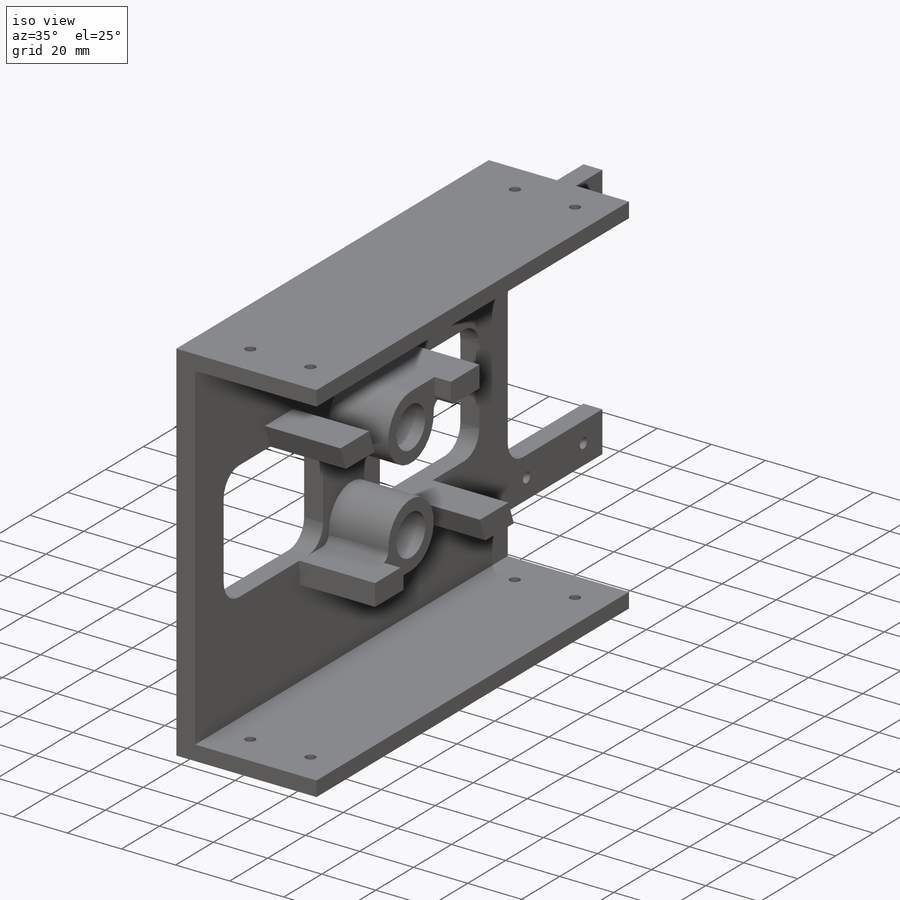
[diagram: iso view]
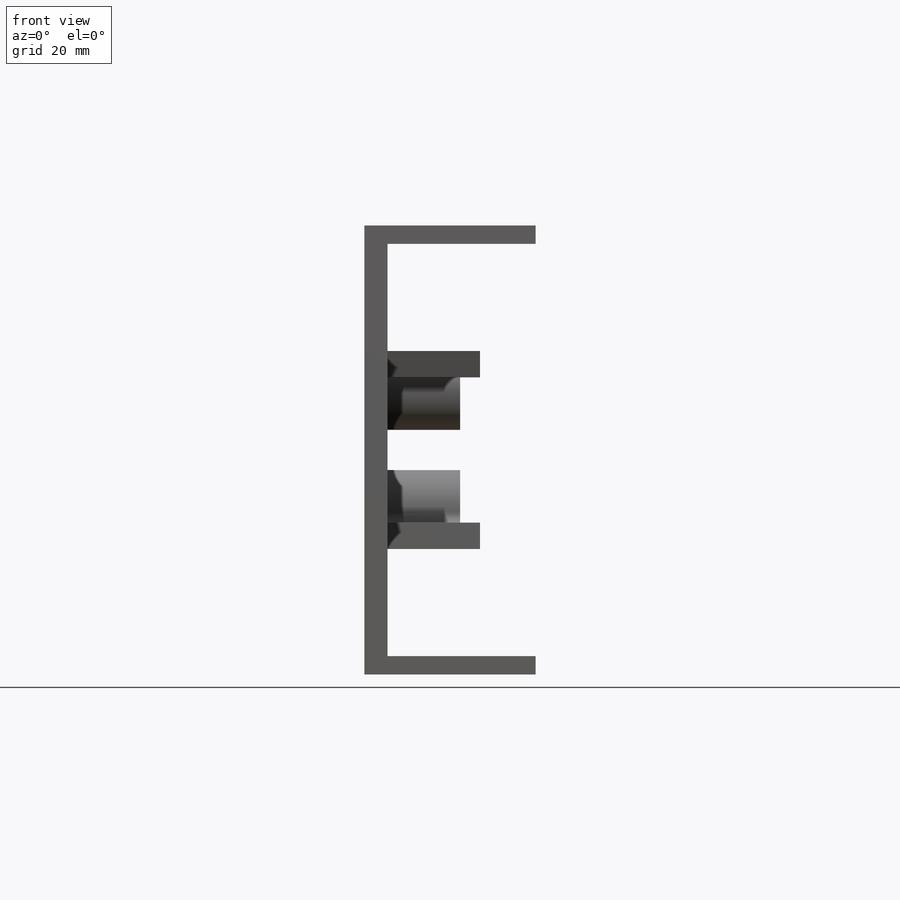
[diagram: front view]
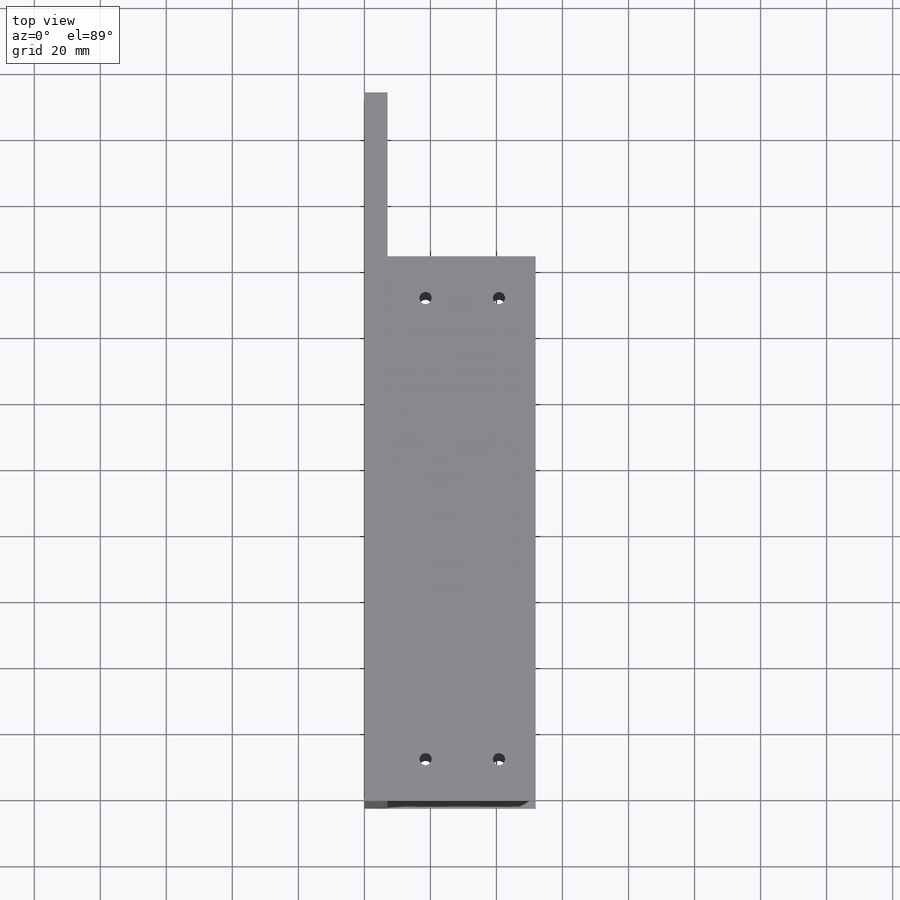
[diagram: top view]
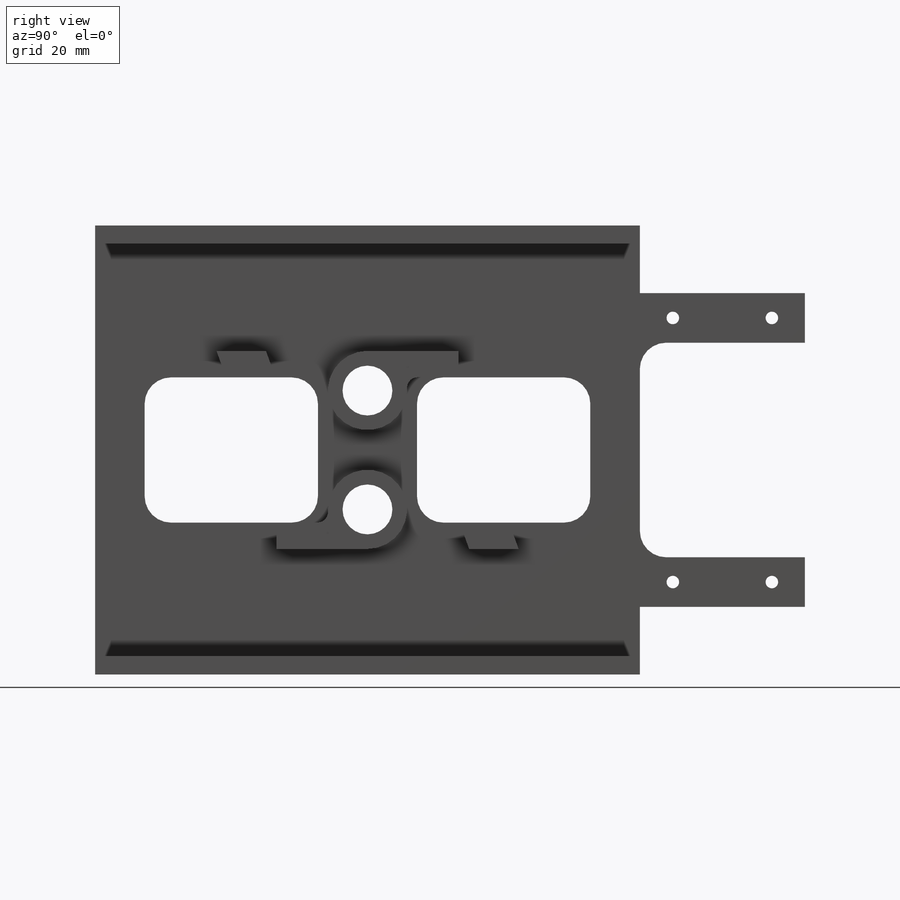
[diagram: right view]
SOLIDWORKS PART (.sldprt)
format: sldprt  version: not decoded by parser v0  size: 675,840 bytes
history: native  units: mm
features: sketch x17, mirror x8, extrude x6, cut_extrude x5, thread x4, fillet x3, hole x2, boolean_combine x2, material x1, delete_body x1 (+11 scaffold rows collapsed)
feature tree (60):
  scaffold x11  (default folders/planes/origin — collapsed)
  material  "6061-T6 (SS)"
  sketch  "Sketch1"  dims[D1=136.0mm D2=165.0mm]
  extrude  "Boss-Extrude1"  Depth=7mm
  sketch  "Sketch5"  dims[D1=95.0mm D2=2.0mm]
  extrude  "Boss-Extrude3"  Depth=50mm
  sketch  "Sketch6"  dims[D1=5.55mm]
  extrude  "Boss-Extrude4"  Depth=44.85mm
  sketch  "Sketch7"  dims[D1=22.225mm D2=139.7mm D3=22.225mm]
  hole  "#6 Clearance Hole1"  Diameter=3.6576mm Depth=136.000025mm
  sketch  "Sketch9"
  sketch  "Sketch8"  dims[hole-wizard template sketch: 60 standard entries collapsed; hole parameters kept: c18.Thru Hole Depth=~136.000025mm]
  mirror  "Mirror1"
  sketch  "shaft stuff"  dims[D1=15.1mm D3=12.0mm D2=18.0mm]
  sketch  "Sketch10"
  extrude  "Boss-Extrude5"  Depth=22mm
  sketch  "Sketch11"
  cut_extrude  "Cut-Extrude1"  [1 undecoded]
  sketch  "Sketch12"  dims[D1=15.0mm]
  cut_extrude  "Cut-Extrude2"  [1 undecoded]
  sketch  "Sketch13"
  cut_extrude  "Cut-Extrude3"  [1 undecoded]
  mirror  "Mirror2"
  sketch  "Sketch14"  dims[c1.D1=15.0mm c1.D2=15.0mm c1.D3=15.0mm c2.D2=22.0mm]
  cut_extrude  "Cut-Extrude4"  [1 undecoded]
  mirror  "Mirror3"
  mirror  "Mirror4"
  fillet  "Fillet1"  Radius=8mm
  hole  "#10-24 Tapped Hole1"  Diameter=3.7973mm Depth=14.95mm
  sketch  "Sketch17"  dims[D1=30.0mm]
  sketch  "Sketch16"  dims[hole-wizard template sketch: 50 standard entries collapsed; hole parameters above]
  thread  "Hole Thread1"  Diameter=7mm  [1 undecoded]
  thread  "Hole Thread2"  Diameter=7mm  [1 undecoded]
  thread  "Hole Thread3"  Diameter=7mm  [1 undecoded]
  thread  "Hole Thread4"  Diameter=7mm  [1 undecoded]
  sketch  "Sketch18"  dims[c1.D1=25.0mm c1.D2=~34.717208mm c2.D2=20.0deg c2.D3=15.0mm c2.D4=8.0mm c2.D5=15.0mm c3.D3=30.0mm]
  extrude  "Boss-Extrude6"  Depth=28mm
  sketch  "Sketch19"
  extrude  "Boss-Extrude7"  [1 undecoded]
  mirror  "Mirror5"
  mirror  "Mirror6"
  mirror  "Mirror7"
  mirror  "Mirror8"
  delete_body  "Body-Delete2"
  boolean_combine  "Combine3"
  boolean_combine  "Combine4"
  fillet  "Fillet2"  Radius=3.175mm
  sketch  "Sketch20"
  cut_extrude  "Cut-Extrude5"  [1 undecoded]
  fillet  "Fillet3"  Radius=2mm
decode coverage: 25 of 48 modeling features carry decoded parameters
note: ~ marks probable driven/reference dimensions
note: 10 parameter values undecoded
summary: no parameter record found for 6 features
note: suppression state not decoded; provenance and decode notes live in map.json
